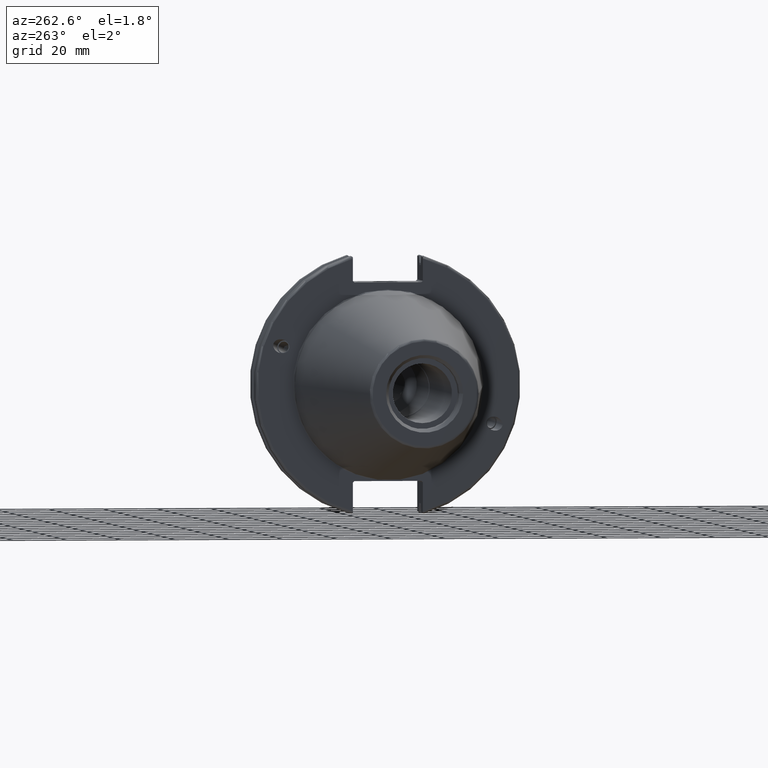
[diagram: clean part render]
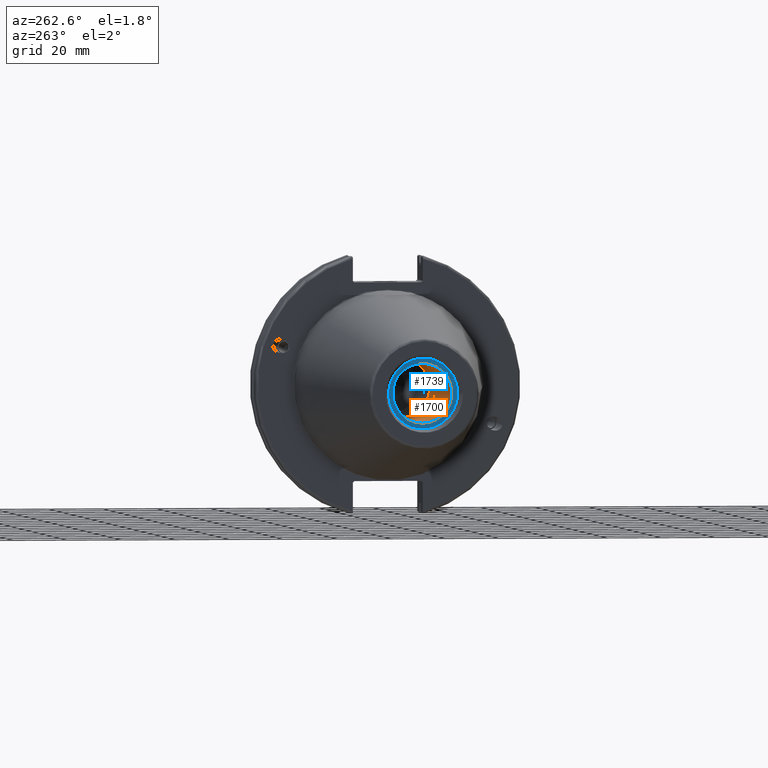
[diagram: same view with the hole feature highlighted: cylindrical wall and planar end face, labeled with their STEP entity ids]
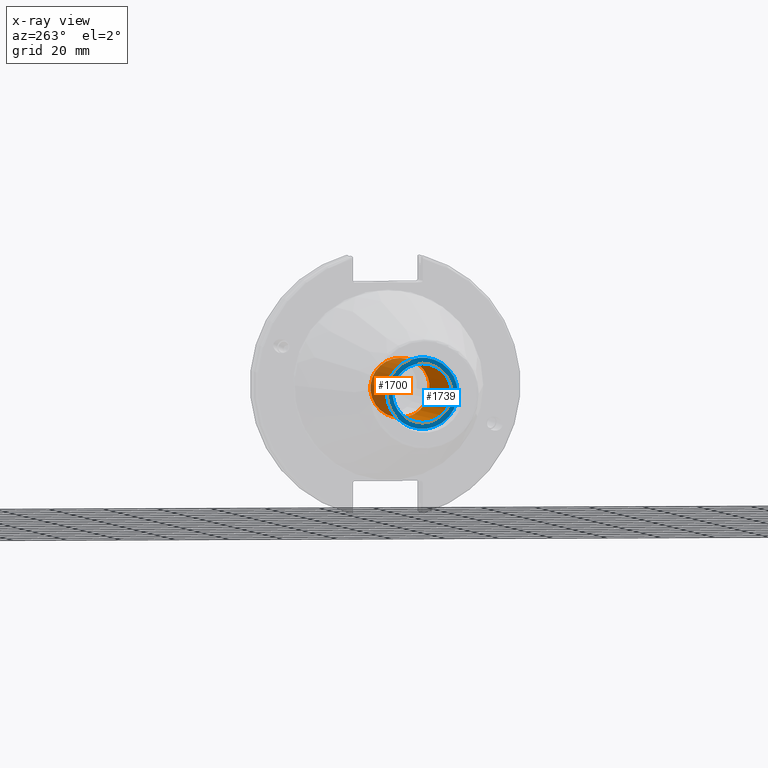
[diagram: x-ray of the same camera — body ghosted, the hole faces saturated]
A machine part, auxiliary view. The highlighted faces form one hole feature of diameter 21.971 mm: the cylindrical wall (entity #1700, orange) and its adjacent planar end face (entity #1739, blue) — they share a circular edge in the B-rep.
The next image is the same camera in x-ray (body ghosted, the hole faces saturated) — the bore reads through the body.
Wall:
#168=CIRCLE('',#1872,10.9855);
#169=CIRCLE('',#1874,10.9855);
#247=FACE_OUTER_BOUND('',#361,.T.);
#361=EDGE_LOOP('',(#1371,#1372,#1373,#1374));
#522=LINE('',#3302,#623);
#623=VECTOR('',#2215,10.9855);
#790=VERTEX_POINT('',#3296);
#791=VERTEX_POINT('',#3300);
#1001=EDGE_CURVE('',#790,#790,#168,.T.);
#1003=EDGE_CURVE('',#791,#791,#169,.T.);
#1004=EDGE_CURVE('',#791,#790,#522,.T.);
#1371=ORIENTED_EDGE('',*,*,#1003,.F.);
#1372=ORIENTED_EDGE('',*,*,#1004,.T.);
#1373=ORIENTED_EDGE('',*,*,#1001,.F.);
#1374=ORIENTED_EDGE('',*,*,#1004,.F.);
#1642=CYLINDRICAL_SURFACE('',#1873,10.9855);
#1700=ADVANCED_FACE('',(#247),#1642,.F.);
#1872=AXIS2_PLACEMENT_3D('',#3297,#2208,#2209);
#1873=AXIS2_PLACEMENT_3D('',#3299,#2211,#2212);
#1874=AXIS2_PLACEMENT_3D('',#3301,#2213,#2214);
#2208=DIRECTION('center_axis',(-1.,0.,0.));
#2209=DIRECTION('ref_axis',(0.,0.,1.));
#2211=DIRECTION('center_axis',(-1.,0.,0.));
#2212=DIRECTION('ref_axis',(0.,0.,1.));
#2213=DIRECTION('center_axis',(1.,0.,0.));
#2214=DIRECTION('ref_axis',(0.,0.,1.));
#2215=DIRECTION('',(1.,0.,0.));
#3296=CARTESIAN_POINT('',(-31.6,-1.34533574120333E-15,-10.9855));
#3297=CARTESIAN_POINT('Origin',(-31.6,0.,0.));
#3299=CARTESIAN_POINT('Origin',(-66.6,0.,0.));
#3300=CARTESIAN_POINT('',(-95.25,1.34533574120333E-15,-10.9855));
#3301=CARTESIAN_POINT('Origin',(-95.25,0.,0.));
#3302=CARTESIAN_POINT('',(-66.6,-1.34533574120333E-15,-10.9855));
End face:
#55=FACE_BOUND('',#406,.T.);
#90=PLANE('',#1937);
#169=CIRCLE('',#1874,10.9855);
#194=CIRCLE('',#1938,13.1);
#286=FACE_OUTER_BOUND('',#405,.T.);
#405=EDGE_LOOP('',(#1585));
#406=EDGE_LOOP('',(#1586));
#791=VERTEX_POINT('',#3300);
#846=VERTEX_POINT('',#3600);
#1003=EDGE_CURVE('',#791,#791,#169,.T.);
#1097=EDGE_CURVE('',#846,#846,#194,.T.);
#1585=ORIENTED_EDGE('',*,*,#1097,.F.);
#1586=ORIENTED_EDGE('',*,*,#1003,.T.);
#1739=ADVANCED_FACE('',(#286,#55),#90,.T.);
#1874=AXIS2_PLACEMENT_3D('',#3301,#2213,#2214);
#1937=AXIS2_PLACEMENT_3D('',#3599,#2384,#2385);
#1938=AXIS2_PLACEMENT_3D('',#3601,#2386,#2387);
#2213=DIRECTION('center_axis',(1.,0.,0.));
#2214=DIRECTION('ref_axis',(0.,0.,1.));
#2384=DIRECTION('center_axis',(-1.,0.,0.));
#2385=DIRECTION('ref_axis',(0.,0.,1.));
#2386=DIRECTION('center_axis',(1.,0.,0.));
#2387=DIRECTION('ref_axis',(0.,0.,-1.));
#3300=CARTESIAN_POINT('',(-95.25,1.34533574120333E-15,-10.9855));
#3301=CARTESIAN_POINT('Origin',(-95.25,0.,0.));
#3599=CARTESIAN_POINT('Origin',(-95.25,13.1,0.));
#3600=CARTESIAN_POINT('',(-95.25,-13.1,-1.60428730688303E-15));
#3601=CARTESIAN_POINT('Origin',(-95.25,0.,0.));